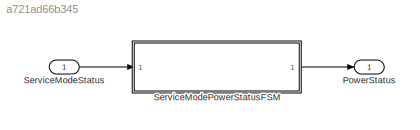
MODEL slx_a721ad66b345
KIND model
CONFIG AbsTol = auto
CONFIG EnableMultiTasking = off
CONFIG FixedStep = auto
CONFIG MaxStep = auto
CONFIG MinStep = auto
CONFIG RelTol = 1e-3
CONFIG SampleTimeConstraint = Unconstrained
CONFIG SolverName = FixedStepAuto
CONFIG StartTime = 0.0
CONFIG StopTime = 10.0
BLOCK [Outport] PowerStatus
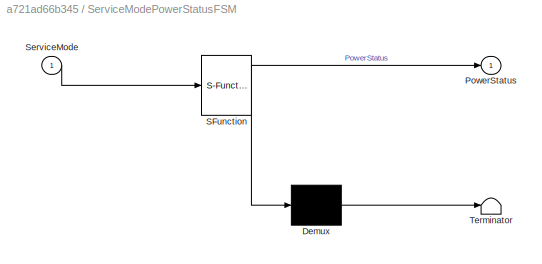
BLOCK [SubSystem] ServiceModePowerStatusFSM
  ErrorFcn = Stateflow.Translate.translate
  PermitHierarchicalResolution = ExplicitOnly
  Ports = [1, 1]
  RequestExecContextInheritance = off
  SFBlockType = Chart
  TreatAsAtomicUnit = on
BLOCK [Demux] ServiceModePowerStatusFSM/ Demux 
  Outputs = 1
  Ports = [1, 1]
BLOCK [S-Function] ServiceModePowerStatusFSM/ SFunction 
  EnableBusSupport = on
  FunctionName = sf_sfun
  PortCounts = [1 2]
  Ports = [1, 2]
  SFcnIsStateOwnerBlock = off
  SFunctionDeploymentMode = off
  Tag = Stateflow S-Function 1
BLOCK [Terminator] ServiceModePowerStatusFSM/ Terminator 
BLOCK [Outport] ServiceModePowerStatusFSM/PowerStatus
BLOCK [Inport] ServiceModePowerStatusFSM/ServiceMode
BLOCK [Inport] ServiceModeStatus
LINE ServiceModePowerStatusFSM:1 -> PowerStatus:1
LINE ServiceModeStatus:1 -> ServiceModePowerStatusFSM:1
CHART ServiceModePowerStatusFSM states=0 transitions=6
CHART  states=0 transitions=0
